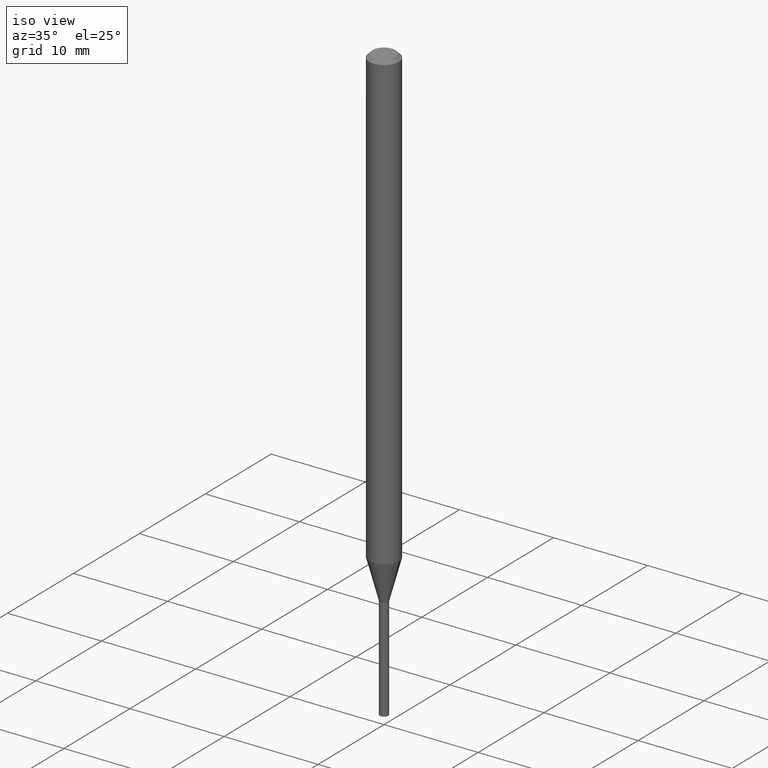
[diagram: clean part render]
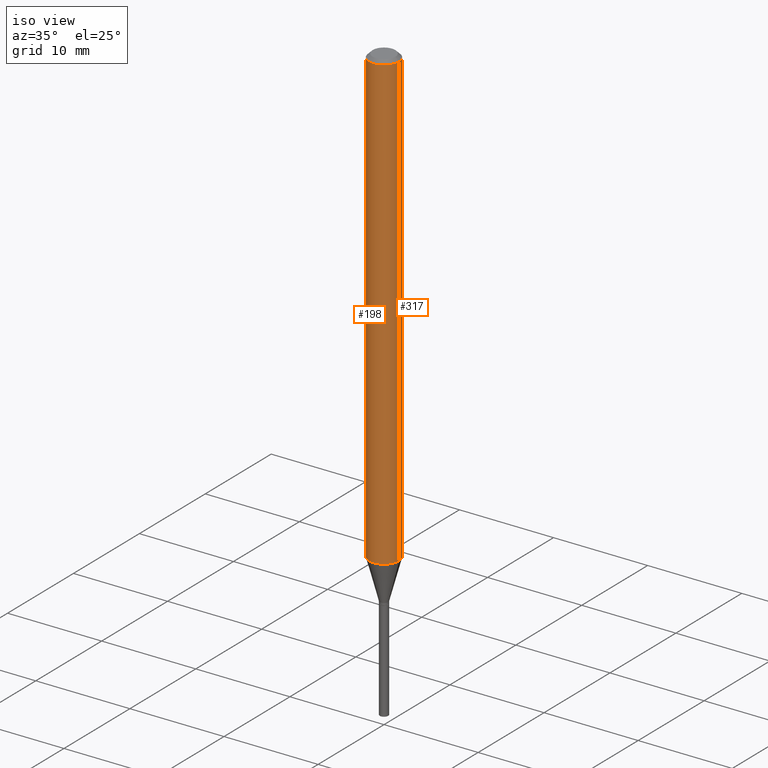
[diagram: same view with one multi-face feature highlighted, each face labeled with its STEP entity id]
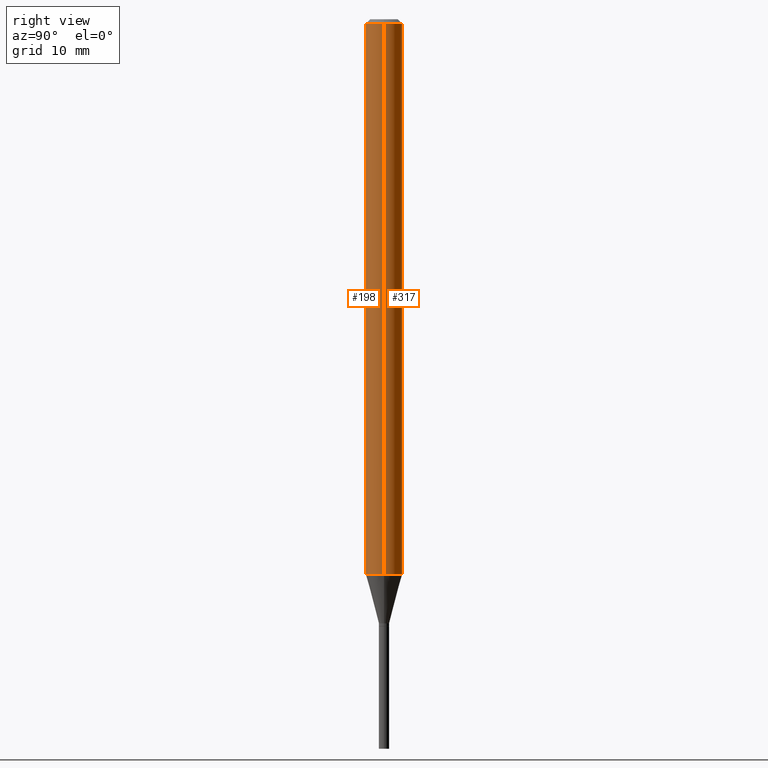
[diagram: same view with one multi-face feature highlighted, each face labeled with its STEP entity id]
A machine part, iso view. The highlighted faces form ONE feature: a constant-radius fillet chain: 2 tangent blend faces with common blend radius 1.5875 mm. The faces share edges in the B-rep.
A second angle (right view) of the same feature is appended — it is thin or edge-on in the first view.
Their STEP definitions:
[1] entity #198 (Cylinder):
#31 = DIRECTION ( 'NONE',  ( -2.445468806185136877E-29, 3.491481338843145188E-15, 1.000000000000000000 ) ) ;
#33 = ORIENTED_EDGE ( 'NONE', *, *, #352, .F. ) ;
#35 = LINE ( 'NONE', #460, #93 ) ;
#41 = DIRECTION ( 'NONE',  ( 1.000000000000000000, -6.982962677686262766E-15, 0.000000000000000000 ) ) ;
#50 = AXIS2_PLACEMENT_3D ( 'NONE', #71, #428, #280 ) ;
#67 = CYLINDRICAL_SURFACE ( 'NONE', #50, 0.06250000000000000000 ) ;
#70 = AXIS2_PLACEMENT_3D ( 'NONE', #433, #385, #318 ) ;
#71 = CARTESIAN_POINT ( 'NONE',  ( 0.000000000000000000, 0.000000000000000000, 0.000000000000000000 ) ) ;
#93 = VECTOR ( 'NONE', #31, 39.37007874015748143 ) ;
#115 = CARTESIAN_POINT ( 'NONE',  ( 4.651422806317884527E-29, -6.640999012644456422E-15, -1.902057713659400573 ) ) ;
#143 = EDGE_LOOP ( 'NONE', ( #33, #189, #330, #151 ) ) ;
#145 = DIRECTION ( 'NONE',  ( -2.445468806185136877E-29, 3.491481338843145188E-15, 1.000000000000000000 ) ) ;
#151 = ORIENTED_EDGE ( 'NONE', *, *, #204, .F. ) ;
#185 = VERTEX_POINT ( 'NONE', #320 ) ;
#189 = ORIENTED_EDGE ( 'NONE', *, *, #434, .T. ) ;
#198 = ADVANCED_FACE ( 'NONE', ( #464 ), #67, .T. ) ;
#204 = EDGE_CURVE ( 'NONE', #221, #331, #259, .T. ) ;
#221 = VERTEX_POINT ( 'NONE', #358 ) ;
#225 = VECTOR ( 'NONE', #145, 39.37007874015748143 ) ;
#242 = AXIS2_PLACEMENT_3D ( 'NONE', #115, #401, #41 ) ;
#247 = VERTEX_POINT ( 'NONE', #436 ) ;
#259 = CIRCLE ( 'NONE', #70, 0.06250000000000000000 ) ;
#280 = DIRECTION ( 'NONE',  ( 1.000000000000000000, -6.982962677686266711E-15, 4.876176775795935793E-29 ) ) ;
#315 = EDGE_CURVE ( 'NONE', #185, #331, #35, .T. ) ;
#318 = DIRECTION ( 'NONE',  ( 1.000000000000000000, -6.982962677686266711E-15, 0.000000000000000000 ) ) ;
#320 = CARTESIAN_POINT ( 'NONE',  ( 0.06250000000000001388, -7.077434179999848880E-15, -1.902057713659400573 ) ) ;
#330 = ORIENTED_EDGE ( 'NONE', *, *, #315, .T. ) ;
#331 = VERTEX_POINT ( 'NONE', #463 ) ;
#352 = EDGE_CURVE ( 'NONE', #247, #221, #399, .T. ) ;
#358 = CARTESIAN_POINT ( 'NONE',  ( -0.06250000000000000000, -2.902596406513489332E-15, -0.01499999999999999944 ) ) ;
#385 = DIRECTION ( 'NONE',  ( -2.445468806185136597E-29, 3.491481338843145583E-15, 1.000000000000000000 ) ) ;
#399 = LINE ( 'NONE', #438, #225 ) ;
#401 = DIRECTION ( 'NONE',  ( -2.445468806185136597E-29, 3.491481338843145583E-15, 1.000000000000000000 ) ) ;
#428 = DIRECTION ( 'NONE',  ( -2.445468806185136597E-29, 3.491481338843145583E-15, 1.000000000000000000 ) ) ;
#433 = CARTESIAN_POINT ( 'NONE',  ( 3.668203209277705088E-31, -5.237222008264718399E-17, -0.01499999999999999944 ) ) ;
#434 = EDGE_CURVE ( 'NONE', #247, #185, #452, .T. ) ;
#436 = CARTESIAN_POINT ( 'NONE',  ( -0.06250000000000001388, -6.196909802794394595E-15, -1.902057713659400573 ) ) ;
#438 = CARTESIAN_POINT ( 'NONE',  ( -0.06250000000000000000, 4.440892098500626162E-16, -3.074334431409316114E-30 ) ) ;
#452 = CIRCLE ( 'NONE', #242, 0.06250000000000000000 ) ;
#460 = CARTESIAN_POINT ( 'NONE',  ( 0.06250000000000000000, -4.364351673553916694E-16, 3.047610484872459871E-30 ) ) ;
#463 = CARTESIAN_POINT ( 'NONE',  ( 0.06250000000000000000, -4.888073874380388472E-16, -0.01499999999999999944 ) ) ;
#464 = FACE_OUTER_BOUND ( 'NONE', #143, .T. ) ;
[2] entity #317 (Cylinder):
#11 = DIRECTION ( 'NONE',  ( 1.000000000000000000, -6.982962677686266711E-15, 0.000000000000000000 ) ) ;
#14 = CIRCLE ( 'NONE', #86, 0.06250000000000000000 ) ;
#31 = DIRECTION ( 'NONE',  ( -2.445468806185136877E-29, 3.491481338843145188E-15, 1.000000000000000000 ) ) ;
#35 = LINE ( 'NONE', #460, #93 ) ;
#38 = ORIENTED_EDGE ( 'NONE', *, *, #315, .F. ) ;
#57 = AXIS2_PLACEMENT_3D ( 'NONE', #175, #426, #322 ) ;
#69 = CARTESIAN_POINT ( 'NONE',  ( 4.651422806317884527E-29, -6.640999012644456422E-15, -1.902057713659400573 ) ) ;
#86 = AXIS2_PLACEMENT_3D ( 'NONE', #218, #440, #11 ) ;
#93 = VECTOR ( 'NONE', #31, 39.37007874015748143 ) ;
#125 = AXIS2_PLACEMENT_3D ( 'NONE', #69, #390, #238 ) ;
#134 = FACE_OUTER_BOUND ( 'NONE', #432, .T. ) ;
#145 = DIRECTION ( 'NONE',  ( -2.445468806185136877E-29, 3.491481338843145188E-15, 1.000000000000000000 ) ) ;
#170 = CYLINDRICAL_SURFACE ( 'NONE', #57, 0.06250000000000000000 ) ;
#175 = CARTESIAN_POINT ( 'NONE',  ( 0.000000000000000000, 0.000000000000000000, 0.000000000000000000 ) ) ;
#185 = VERTEX_POINT ( 'NONE', #320 ) ;
#218 = CARTESIAN_POINT ( 'NONE',  ( 3.668203209277705088E-31, -5.237222008264718399E-17, -0.01499999999999999944 ) ) ;
#221 = VERTEX_POINT ( 'NONE', #358 ) ;
#225 = VECTOR ( 'NONE', #145, 39.37007874015748143 ) ;
#238 = DIRECTION ( 'NONE',  ( 1.000000000000000000, -6.982962677686262766E-15, 0.000000000000000000 ) ) ;
#247 = VERTEX_POINT ( 'NONE', #436 ) ;
#300 = EDGE_CURVE ( 'NONE', #185, #247, #406, .T. ) ;
#315 = EDGE_CURVE ( 'NONE', #185, #331, #35, .T. ) ;
#317 = ADVANCED_FACE ( 'NONE', ( #134 ), #170, .T. ) ;
#320 = CARTESIAN_POINT ( 'NONE',  ( 0.06250000000000001388, -7.077434179999848880E-15, -1.902057713659400573 ) ) ;
#322 = DIRECTION ( 'NONE',  ( 1.000000000000000000, -6.982962677686266711E-15, 4.876176775795935793E-29 ) ) ;
#331 = VERTEX_POINT ( 'NONE', #463 ) ;
#352 = EDGE_CURVE ( 'NONE', #247, #221, #399, .T. ) ;
#358 = CARTESIAN_POINT ( 'NONE',  ( -0.06250000000000000000, -2.902596406513489332E-15, -0.01499999999999999944 ) ) ;
#383 = EDGE_CURVE ( 'NONE', #331, #221, #14, .T. ) ;
#390 = DIRECTION ( 'NONE',  ( -2.445468806185136597E-29, 3.491481338843145583E-15, 1.000000000000000000 ) ) ;
#399 = LINE ( 'NONE', #438, #225 ) ;
#402 = ORIENTED_EDGE ( 'NONE', *, *, #352, .T. ) ;
#406 = CIRCLE ( 'NONE', #125, 0.06250000000000000000 ) ;
#408 = ORIENTED_EDGE ( 'NONE', *, *, #300, .T. ) ;
#426 = DIRECTION ( 'NONE',  ( -2.445468806185136597E-29, 3.491481338843145583E-15, 1.000000000000000000 ) ) ;
#432 = EDGE_LOOP ( 'NONE', ( #408, #402, #444, #38 ) ) ;
#436 = CARTESIAN_POINT ( 'NONE',  ( -0.06250000000000001388, -6.196909802794394595E-15, -1.902057713659400573 ) ) ;
#438 = CARTESIAN_POINT ( 'NONE',  ( -0.06250000000000000000, 4.440892098500626162E-16, -3.074334431409316114E-30 ) ) ;
#440 = DIRECTION ( 'NONE',  ( -2.445468806185136597E-29, 3.491481338843145583E-15, 1.000000000000000000 ) ) ;
#444 = ORIENTED_EDGE ( 'NONE', *, *, #383, .F. ) ;
#460 = CARTESIAN_POINT ( 'NONE',  ( 0.06250000000000000000, -4.364351673553916694E-16, 3.047610484872459871E-30 ) ) ;
#463 = CARTESIAN_POINT ( 'NONE',  ( 0.06250000000000000000, -4.888073874380388472E-16, -0.01499999999999999944 ) ) ;